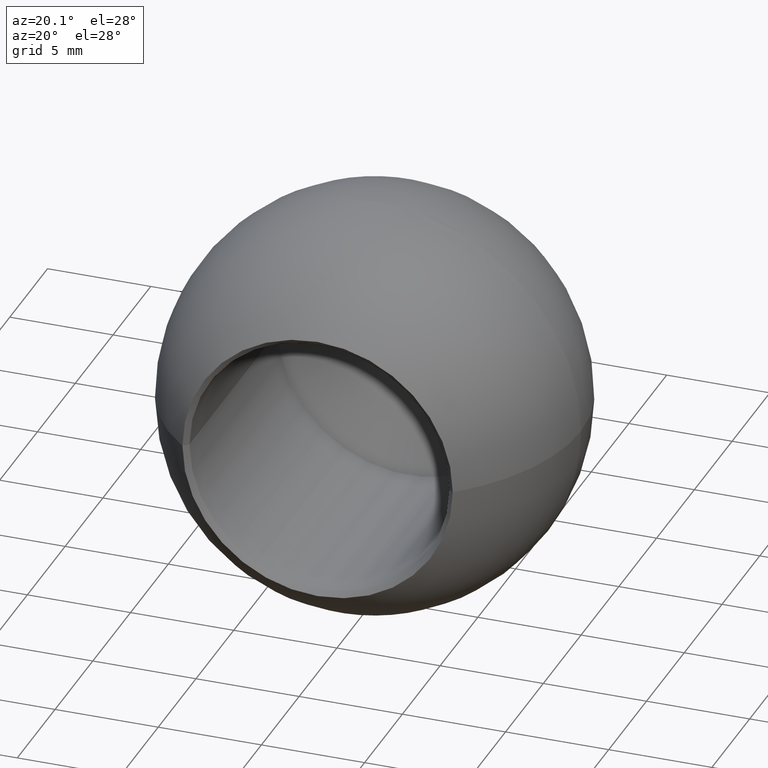
[diagram: clean part render]
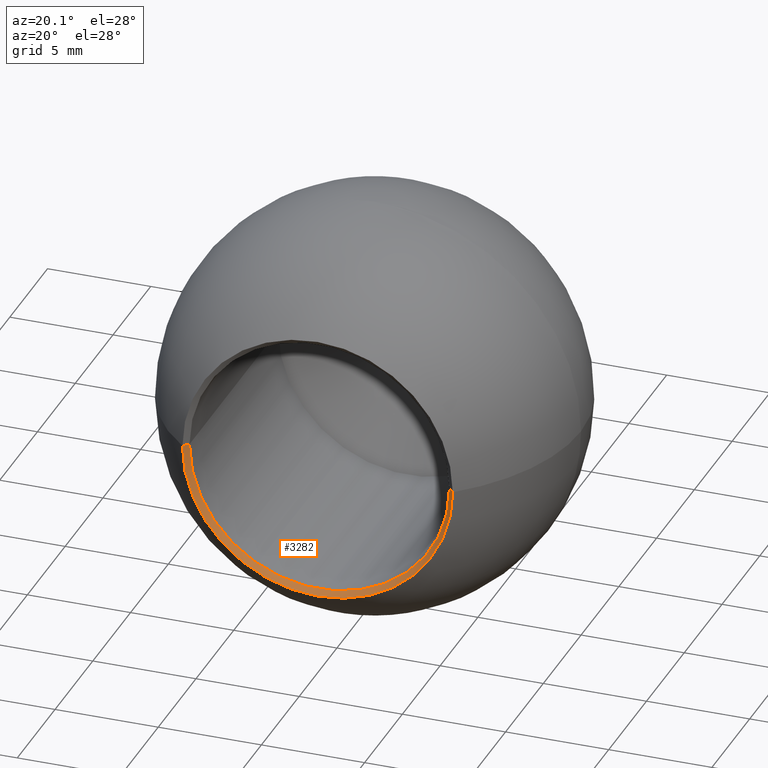
[diagram: same view with one face highlighted and labeled with its STEP entity id]
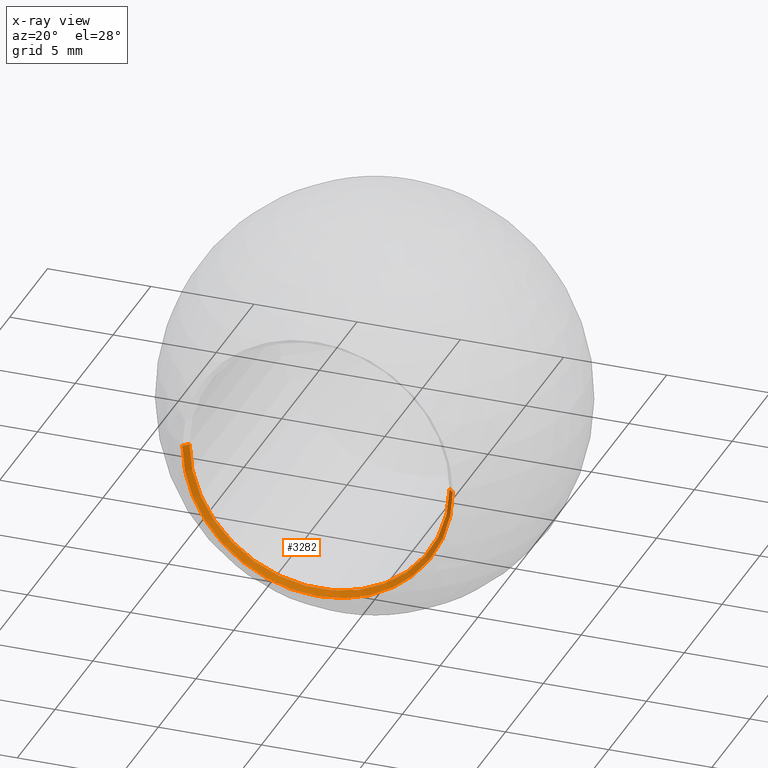
[diagram: x-ray of the same camera — body ghosted, the highlighted face saturated]
A machine part, auxiliary view. The second image highlights one B-rep face of the part: STEP entity #3282.
The next image is the same camera in x-ray: the body ghosted, the highlighted face saturated — about 0% of this face is hidden behind the body in this view.
In plain terms, the highlighted conical surface has half-angle 45 deg.
Its self-contained STEP definition (entity closure, byte-faithful):
#581 = EDGE_CURVE ( 'NONE', #6129, #12548, #5460, .T. ) ;
#605 = CARTESIAN_POINT ( 'NONE',  ( -6.550000000000002500, -7.556288771612687900, 8.021436534415167200E-016 ) ) ;
#615 = LINE ( 'NONE', #4861, #7194 ) ;
#780 = DIRECTION ( 'NONE',  ( -0.7071067811865389100, -0.7071067811865561200, 8.659560562354828100E-017 ) ) ;
#909 = EDGE_LOOP ( 'NONE', ( #4749, #8997, #5468, #12389 ) ) ;
#953 = AXIS2_PLACEMENT_3D ( 'NONE', #12823, #10855, #6700 ) ;
#1147 = CARTESIAN_POINT ( 'NONE',  ( -2.824115461379186800E-017, -7.306288771612680800, 0.0000000000000000000 ) ) ;
#1792 = CARTESIAN_POINT ( 'NONE',  ( -6.300000000000001600, -7.306288771612680800, 7.715274834628327300E-016 ) ) ;
#3034 = AXIS2_PLACEMENT_3D ( 'NONE', #8213, #10319, #11382 ) ;
#3282 = ADVANCED_FACE ( 'NONE', ( #8720 ), #6932, .F. ) ;
#4291 = CARTESIAN_POINT ( 'NONE',  ( 6.550000000000002500, -7.556288771612687900, 0.0000000000000000000 ) ) ;
#4749 = ORIENTED_EDGE ( 'NONE', *, *, #9837, .F. ) ;
#4861 = CARTESIAN_POINT ( 'NONE',  ( 6.300000000000001600, -7.306288771612680800, 0.0000000000000000000 ) ) ;
#5460 = LINE ( 'NONE', #1792, #12676 ) ;
#5468 = ORIENTED_EDGE ( 'NONE', *, *, #9128, .T. ) ;
#6129 = VERTEX_POINT ( 'NONE', #9499 ) ;
#6418 = DIRECTION ( 'NONE',  ( 1.000000000000000000, 0.0000000000000000000, 0.0000000000000000000 ) ) ;
#6700 = DIRECTION ( 'NONE',  ( 1.000000000000000000, 0.0000000000000000000, 0.0000000000000000000 ) ) ;
#6867 = CIRCLE ( 'NONE', #3034, 6.300000000000001600 ) ;
#6932 = CONICAL_SURFACE ( 'NONE', #13224, 6.300000000000001600, 0.7853981633974361800 ) ;
#7194 = VECTOR ( 'NONE', #7205, 1000.000000000000000 ) ;
#7205 = DIRECTION ( 'NONE',  ( 0.7071067811865389100, -0.7071067811865561200, 0.0000000000000000000 ) ) ;
#7501 = VERTEX_POINT ( 'NONE', #9025 ) ;
#8213 = CARTESIAN_POINT ( 'NONE',  ( -2.824115461379186800E-017, -7.306288771612680800, 0.0000000000000000000 ) ) ;
#8720 = FACE_OUTER_BOUND ( 'NONE', #909, .T. ) ;
#8997 = ORIENTED_EDGE ( 'NONE', *, *, #581, .T. ) ;
#9025 = CARTESIAN_POINT ( 'NONE',  ( 6.300000000000001600, -7.306288771612680800, 0.0000000000000000000 ) ) ;
#9128 = EDGE_CURVE ( 'NONE', #12548, #13060, #11935, .T. ) ;
#9499 = CARTESIAN_POINT ( 'NONE',  ( -6.300000000000001600, -7.306288771612680800, 7.868355684521747300E-016 ) ) ;
#9837 = EDGE_CURVE ( 'NONE', #6129, #7501, #6867, .T. ) ;
#10319 = DIRECTION ( 'NONE',  ( -1.631843486866781500E-018, -1.000000000000000000, -0.0000000000000000000 ) ) ;
#10855 = DIRECTION ( 'NONE',  ( -1.631843486866781500E-018, -1.000000000000000000, -0.0000000000000000000 ) ) ;
#11382 = DIRECTION ( 'NONE',  ( 1.000000000000000000, 0.0000000000000000000, 0.0000000000000000000 ) ) ;
#11935 = CIRCLE ( 'NONE', #953, 6.550000000000002500 ) ;
#12389 = ORIENTED_EDGE ( 'NONE', *, *, #13516, .F. ) ;
#12548 = VERTEX_POINT ( 'NONE', #605 ) ;
#12652 = DIRECTION ( 'NONE',  ( -1.631843486866781500E-018, -1.000000000000000000, -0.0000000000000000000 ) ) ;
#12676 = VECTOR ( 'NONE', #780, 1000.000000000000000 ) ;
#12823 = CARTESIAN_POINT ( 'NONE',  ( -2.864911548550857300E-017, -7.556288771612687900, 0.0000000000000000000 ) ) ;
#13060 = VERTEX_POINT ( 'NONE', #4291 ) ;
#13224 = AXIS2_PLACEMENT_3D ( 'NONE', #1147, #12652, #6418 ) ;
#13516 = EDGE_CURVE ( 'NONE', #7501, #13060, #615, .T. ) ;